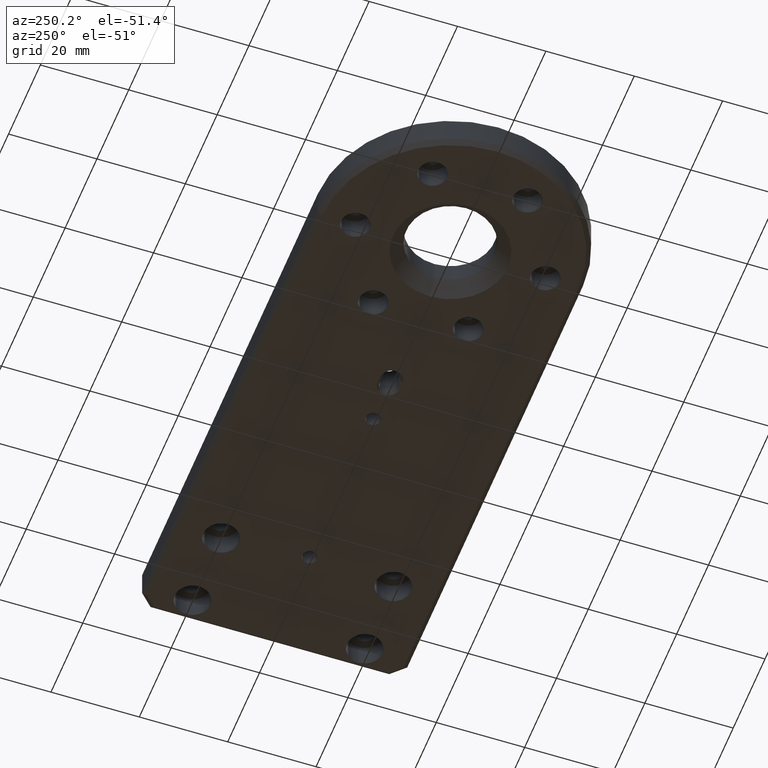
[diagram: clean part render]
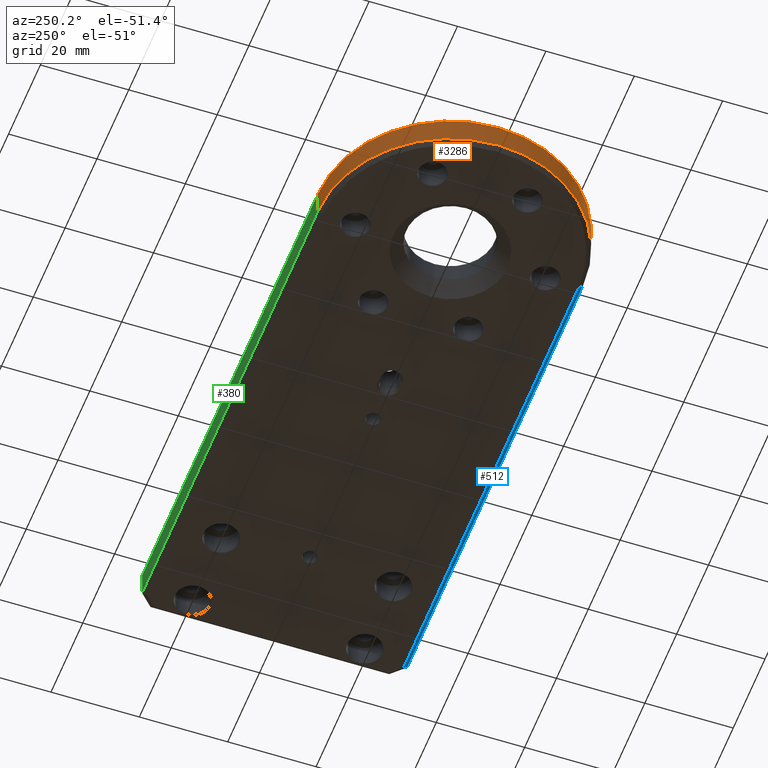
[diagram: same view with three faces highlighted in distinct colors, each labeled with its STEP entity id]
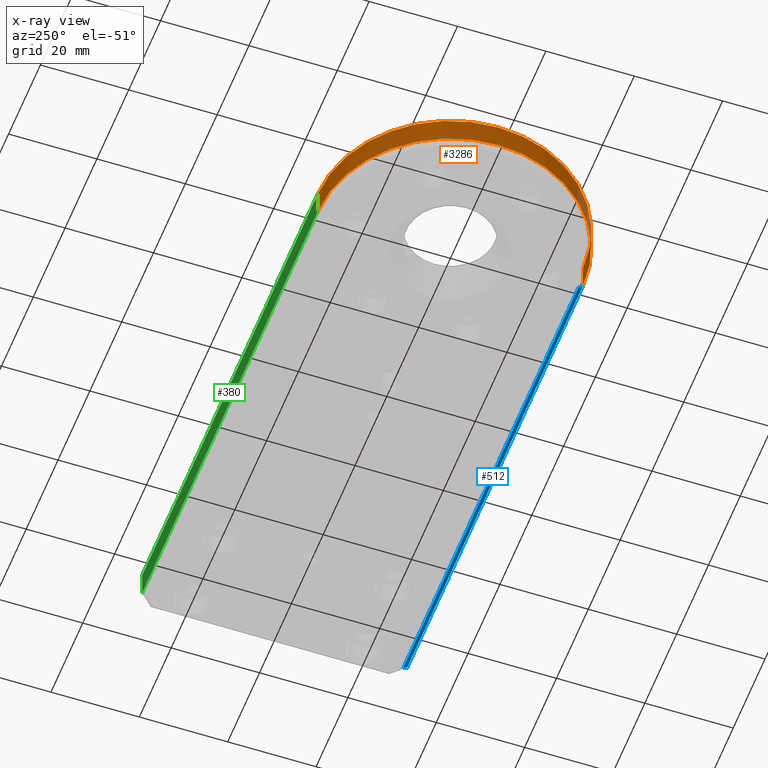
[diagram: x-ray of the same camera — body ghosted, the three highlighted faces saturated]
A machine part, auxiliary view with three faces highlighted in distinct colors.
The next image is the same camera in x-ray (body ghosted, the three faces saturated) — at least one of them is partly hidden behind the body in this view.
Their STEP definitions:

[orange] entity #3286 — the highlighted cylindrical surface (partial cylindrical patch) has radius 30 mm, axis along (0, 0, 1).
#72 = CARTESIAN_POINT ( 'NONE',  ( 1.836970198721029589E-15, 30.00000000000000000, -8.000000000000000000 ) ) ;
#186 = DIRECTION ( 'NONE',  ( -0.0000000000000000000, -0.0000000000000000000, 1.000000000000000000 ) ) ;
#215 = VECTOR ( 'NONE', #1198, 1000.000000000000000 ) ;
#353 = LINE ( 'NONE', #72, #215 ) ;
#393 = AXIS2_PLACEMENT_3D ( 'NONE', #3232, #186, #2722 ) ;
#421 = ORIENTED_EDGE ( 'NONE', *, *, #849, .T. ) ;
#572 = VECTOR ( 'NONE', #2120, 1000.000000000000000 ) ;
#678 = ORIENTED_EDGE ( 'NONE', *, *, #2325, .F. ) ;
#683 = DIRECTION ( 'NONE',  ( 0.0000000000000000000, 0.0000000000000000000, 1.000000000000000000 ) ) ;
#722 = EDGE_LOOP ( 'NONE', ( #798, #421, #1444, #678, #1925 ) ) ;
#740 = CARTESIAN_POINT ( 'NONE',  ( -5.510910596163088767E-15, -30.00000000000000000, -8.000000000000000000 ) ) ;
#798 = ORIENTED_EDGE ( 'NONE', *, *, #1937, .T. ) ;
#833 = VERTEX_POINT ( 'NONE', #3394 ) ;
#849 = EDGE_CURVE ( 'NONE', #1826, #2591, #2016, .T. ) ;
#957 = FACE_OUTER_BOUND ( 'NONE', #722, .T. ) ;
#1198 = DIRECTION ( 'NONE',  ( 0.0000000000000000000, 0.0000000000000000000, 1.000000000000000000 ) ) ;
#1334 = CIRCLE ( 'NONE', #1620, 30.00000000000000000 ) ;
#1370 = AXIS2_PLACEMENT_3D ( 'NONE', #2306, #683, #3399 ) ;
#1435 = VERTEX_POINT ( 'NONE', #1934 ) ;
#1444 = ORIENTED_EDGE ( 'NONE', *, *, #2715, .T. ) ;
#1589 = DIRECTION ( 'NONE',  ( 0.0000000000000000000, 0.0000000000000000000, -1.000000000000000000 ) ) ;
#1620 = AXIS2_PLACEMENT_3D ( 'NONE', #2392, #3340, #1861 ) ;
#1798 = CARTESIAN_POINT ( 'NONE',  ( -5.510910596163088767E-15, -30.00000000000000000, -6.999999999999985789 ) ) ;
#1826 = VERTEX_POINT ( 'NONE', #3136 ) ;
#1861 = DIRECTION ( 'NONE',  ( 1.000000000000000000, 0.0000000000000000000, 0.0000000000000000000 ) ) ;
#1925 = ORIENTED_EDGE ( 'NONE', *, *, #2338, .T. ) ;
#1934 = CARTESIAN_POINT ( 'NONE',  ( 1.836970198721029589E-15, 30.00000000000000000, -6.999999999999985789 ) ) ;
#1937 = EDGE_CURVE ( 'NONE', #3290, #1826, #2959, .T. ) ;
#1965 = CIRCLE ( 'NONE', #393, 30.00000000000000000 ) ;
#2016 = CIRCLE ( 'NONE', #3030, 30.00000000000000000 ) ;
#2072 = CARTESIAN_POINT ( 'NONE',  ( -30.00000000000000000, 0.0000000000000000000, -1.000000000000014655 ) ) ;
#2078 = CYLINDRICAL_SURFACE ( 'NONE', #1370, 30.00000000000000000 ) ;
#2120 = DIRECTION ( 'NONE',  ( 0.0000000000000000000, 0.0000000000000000000, 1.000000000000000000 ) ) ;
#2184 = DIRECTION ( 'NONE',  ( 1.000000000000000000, 0.0000000000000000000, 0.0000000000000000000 ) ) ;
#2306 = CARTESIAN_POINT ( 'NONE',  ( 0.0000000000000000000, 0.0000000000000000000, -8.000000000000000000 ) ) ;
#2325 = EDGE_CURVE ( 'NONE', #1435, #833, #353, .T. ) ;
#2338 = EDGE_CURVE ( 'NONE', #1435, #3290, #1965, .T. ) ;
#2392 = CARTESIAN_POINT ( 'NONE',  ( 0.0000000000000000000, 0.0000000000000000000, -1.000000000000014655 ) ) ;
#2591 = VERTEX_POINT ( 'NONE', #2072 ) ;
#2604 = CARTESIAN_POINT ( 'NONE',  ( 0.0000000000000000000, 0.0000000000000000000, -1.000000000000014655 ) ) ;
#2715 = EDGE_CURVE ( 'NONE', #2591, #833, #1334, .T. ) ;
#2722 = DIRECTION ( 'NONE',  ( 1.000000000000000000, 0.0000000000000000000, 0.0000000000000000000 ) ) ;
#2959 = LINE ( 'NONE', #740, #572 ) ;
#3030 = AXIS2_PLACEMENT_3D ( 'NONE', #2604, #1589, #2184 ) ;
#3136 = CARTESIAN_POINT ( 'NONE',  ( -5.510910596163088767E-15, -30.00000000000000000, -1.000000000000014655 ) ) ;
#3232 = CARTESIAN_POINT ( 'NONE',  ( 0.0000000000000000000, 0.0000000000000000000, -6.999999999999985789 ) ) ;
#3286 = ADVANCED_FACE ( 'NONE', ( #957 ), #2078, .T. ) ;
#3290 = VERTEX_POINT ( 'NONE', #1798 ) ;
#3340 = DIRECTION ( 'NONE',  ( 0.0000000000000000000, 0.0000000000000000000, -1.000000000000000000 ) ) ;
#3394 = CARTESIAN_POINT ( 'NONE',  ( 1.836970198721029589E-15, 30.00000000000000000, -1.000000000000014655 ) ) ;
#3399 = DIRECTION ( 'NONE',  ( 1.000000000000000000, 0.0000000000000000000, 0.0000000000000000000 ) ) ;

[blue] entity #512 — the highlighted planar face has unit normal (-0, -0.7071, -0.7071).
#12 = EDGE_LOOP ( 'NONE', ( #3105, #1257, #1644, #1998 ) ) ;
#27 = CARTESIAN_POINT ( 'NONE',  ( 110.4999999999999716, -30.00000000000000000, -6.999999999999988454 ) ) ;
#74 = DIRECTION ( 'NONE',  ( -1.000000000000000000, 0.0000000000000000000, 0.0000000000000000000 ) ) ;
#168 = VECTOR ( 'NONE', #1500, 1000.000000000000114 ) ;
#189 = LINE ( 'NONE', #3521, #1563 ) ;
#512 = ADVANCED_FACE ( 'NONE', ( #1376 ), #1295, .T. ) ;
#532 = VERTEX_POINT ( 'NONE', #657 ) ;
#628 = CARTESIAN_POINT ( 'NONE',  ( -5.510910596163088767E-15, -28.99999999999998579, -8.000000000000000000 ) ) ;
#657 = CARTESIAN_POINT ( 'NONE',  ( -5.510910596163088767E-15, -28.99999999999998579, -8.000000000000000000 ) ) ;
#859 = VERTEX_POINT ( 'NONE', #2672 ) ;
#990 = DIRECTION ( 'NONE',  ( 1.000000000000000000, 0.0000000000000000000, -0.0000000000000000000 ) ) ;
#1001 = DIRECTION ( 'NONE',  ( -1.000000000000000000, 0.0000000000000000000, 0.0000000000000000000 ) ) ;
#1257 = ORIENTED_EDGE ( 'NONE', *, *, #3138, .F. ) ;
#1295 = PLANE ( 'NONE',  #2887 ) ;
#1338 = EDGE_CURVE ( 'NONE', #859, #1655, #1791, .T. ) ;
#1376 = FACE_OUTER_BOUND ( 'NONE', #12, .T. ) ;
#1495 = CARTESIAN_POINT ( 'NONE',  ( 113.4999999999999858, -30.00000000000000000, -6.999999999999985789 ) ) ;
#1500 = DIRECTION ( 'NONE',  ( 0.2810846377148218944, -0.6785983445458466656, 0.6785983445458466656 ) ) ;
#1563 = VECTOR ( 'NONE', #1850, 1000.000000000000114 ) ;
#1644 = ORIENTED_EDGE ( 'NONE', *, *, #1338, .T. ) ;
#1655 = VERTEX_POINT ( 'NONE', #27 ) ;
#1791 = LINE ( 'NONE', #2657, #168 ) ;
#1798 = CARTESIAN_POINT ( 'NONE',  ( -5.510910596163088767E-15, -30.00000000000000000, -6.999999999999985789 ) ) ;
#1850 = DIRECTION ( 'NONE',  ( 0.0000000000000000000, 0.7071067811865474617, -0.7071067811865474617 ) ) ;
#1985 = EDGE_CURVE ( 'NONE', #3290, #532, #189, .T. ) ;
#1998 = ORIENTED_EDGE ( 'NONE', *, *, #2666, .F. ) ;
#2038 = LINE ( 'NONE', #628, #3494 ) ;
#2108 = DIRECTION ( 'NONE',  ( -0.0000000000000000000, -0.7071067811865475727, -0.7071067811865475727 ) ) ;
#2128 = CARTESIAN_POINT ( 'NONE',  ( 110.4999999999999716, -30.00000000000000000, -6.999999999999985789 ) ) ;
#2657 = CARTESIAN_POINT ( 'NONE',  ( 114.6158464602576856, -39.93653234499939941, 2.936532344999414956 ) ) ;
#2666 = EDGE_CURVE ( 'NONE', #3290, #1655, #3449, .T. ) ;
#2672 = CARTESIAN_POINT ( 'NONE',  ( 110.0857864376268651, -28.99999999999998579, -8.000000000000000000 ) ) ;
#2887 = AXIS2_PLACEMENT_3D ( 'NONE', #1495, #2108, #1001 ) ;
#3105 = ORIENTED_EDGE ( 'NONE', *, *, #1985, .T. ) ;
#3138 = EDGE_CURVE ( 'NONE', #859, #532, #2038, .T. ) ;
#3290 = VERTEX_POINT ( 'NONE', #1798 ) ;
#3423 = VECTOR ( 'NONE', #990, 1000.000000000000000 ) ;
#3449 = LINE ( 'NONE', #2128, #3423 ) ;
#3494 = VECTOR ( 'NONE', #74, 1000.000000000000000 ) ;
#3521 = CARTESIAN_POINT ( 'NONE',  ( -5.510910596163088767E-15, -30.00000000000000000, -6.999999999999985789 ) ) ;

[green] entity #380 — the highlighted planar face has unit normal (0, 1, 0).
#72 = CARTESIAN_POINT ( 'NONE',  ( 1.836970198721029589E-15, 30.00000000000000000, -8.000000000000000000 ) ) ;
#109 = EDGE_CURVE ( 'NONE', #1493, #1477, #346, .T. ) ;
#215 = VECTOR ( 'NONE', #1198, 1000.000000000000000 ) ;
#305 = DIRECTION ( 'NONE',  ( 0.0000000000000000000, 0.0000000000000000000, -1.000000000000000000 ) ) ;
#334 = EDGE_CURVE ( 'NONE', #1477, #1435, #673, .T. ) ;
#346 = LINE ( 'NONE', #1424, #925 ) ;
#353 = LINE ( 'NONE', #72, #215 ) ;
#380 = ADVANCED_FACE ( 'NONE', ( #1789 ), #1297, .T. ) ;
#664 = ORIENTED_EDGE ( 'NONE', *, *, #2325, .T. ) ;
#673 = LINE ( 'NONE', #1259, #1455 ) ;
#693 = CARTESIAN_POINT ( 'NONE',  ( 1.836970198721029589E-15, 30.00000000000000000, -8.000000000000000000 ) ) ;
#806 = VECTOR ( 'NONE', #3294, 1000.000000000000000 ) ;
#833 = VERTEX_POINT ( 'NONE', #3394 ) ;
#925 = VECTOR ( 'NONE', #305, 1000.000000000000000 ) ;
#1198 = DIRECTION ( 'NONE',  ( 0.0000000000000000000, 0.0000000000000000000, 1.000000000000000000 ) ) ;
#1259 = CARTESIAN_POINT ( 'NONE',  ( 1.836970198721029589E-15, 30.00000000000000000, -6.999999999999985789 ) ) ;
#1297 = PLANE ( 'NONE',  #2860 ) ;
#1340 = LINE ( 'NONE', #2188, #806 ) ;
#1369 = ORIENTED_EDGE ( 'NONE', *, *, #2839, .T. ) ;
#1424 = CARTESIAN_POINT ( 'NONE',  ( 110.4999999999999574, 30.00000000000000000, -8.000000000000000000 ) ) ;
#1435 = VERTEX_POINT ( 'NONE', #1934 ) ;
#1455 = VECTOR ( 'NONE', #3510, 1000.000000000000000 ) ;
#1477 = VERTEX_POINT ( 'NONE', #2189 ) ;
#1493 = VERTEX_POINT ( 'NONE', #1883 ) ;
#1557 = EDGE_LOOP ( 'NONE', ( #664, #1369, #2527, #2921 ) ) ;
#1789 = FACE_OUTER_BOUND ( 'NONE', #1557, .T. ) ;
#1883 = CARTESIAN_POINT ( 'NONE',  ( 110.4999999999999574, 30.00000000000000000, -1.000000000000014655 ) ) ;
#1934 = CARTESIAN_POINT ( 'NONE',  ( 1.836970198721029589E-15, 30.00000000000000000, -6.999999999999985789 ) ) ;
#2188 = CARTESIAN_POINT ( 'NONE',  ( 1.836970198721029589E-15, 30.00000000000000000, -1.000000000000014655 ) ) ;
#2189 = CARTESIAN_POINT ( 'NONE',  ( 110.4999999999999574, 30.00000000000000000, -6.999999999999985789 ) ) ;
#2325 = EDGE_CURVE ( 'NONE', #1435, #833, #353, .T. ) ;
#2527 = ORIENTED_EDGE ( 'NONE', *, *, #109, .T. ) ;
#2674 = DIRECTION ( 'NONE',  ( 0.0000000000000000000, -0.0000000000000000000, 1.000000000000000000 ) ) ;
#2839 = EDGE_CURVE ( 'NONE', #833, #1493, #1340, .T. ) ;
#2860 = AXIS2_PLACEMENT_3D ( 'NONE', #693, #3488, #2674 ) ;
#2921 = ORIENTED_EDGE ( 'NONE', *, *, #334, .T. ) ;
#3294 = DIRECTION ( 'NONE',  ( 1.000000000000000000, 0.0000000000000000000, 0.0000000000000000000 ) ) ;
#3394 = CARTESIAN_POINT ( 'NONE',  ( 1.836970198721029589E-15, 30.00000000000000000, -1.000000000000014655 ) ) ;
#3488 = DIRECTION ( 'NONE',  ( 0.0000000000000000000, 1.000000000000000000, 0.0000000000000000000 ) ) ;
#3510 = DIRECTION ( 'NONE',  ( -1.000000000000000000, 0.0000000000000000000, 0.0000000000000000000 ) ) ;